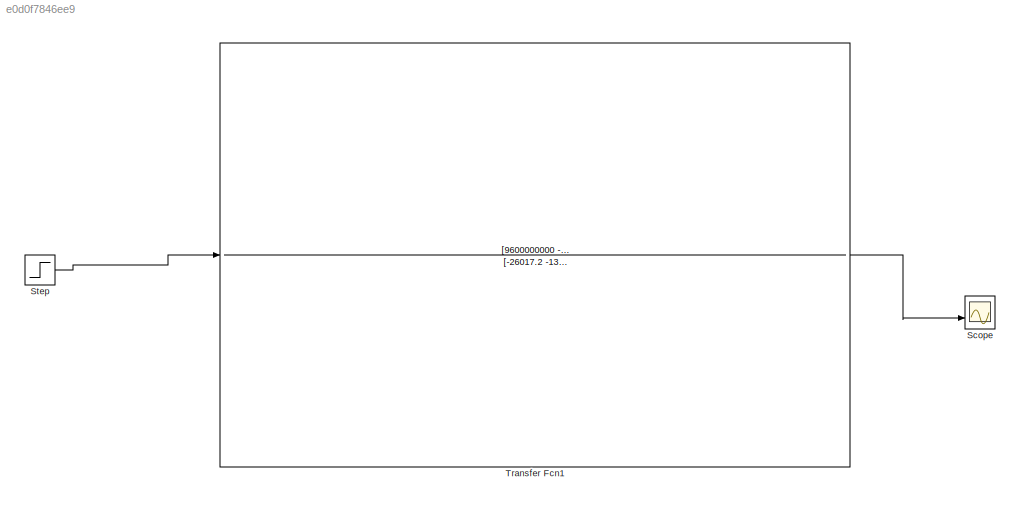
MODEL slx_e0d0f7846ee9
KIND model
CONFIG AbsTol = auto
CONFIG EnableMultiTasking = off
CONFIG FixedStep = auto
CONFIG MaxStep = auto
CONFIG MinStep = auto
CONFIG RelTol = 1e-3
CONFIG SampleTimeConstraint = Unconstrained
CONFIG Solver = VariableStepAuto
CONFIG SolverName = VariableStepAuto
CONFIG StartTime = 0.0
CONFIG StopTime = 10
BLOCK [Scope] Scope
  NumInputPorts = 2
  Ports = [2]
  ScopeSpecificationString = Simulink.scopes.TimeScopeBlockCfg('CurrentConfiguration', extmgr.ConfigurationSet(extmgr.Configuration('Core','General UI',true),extmgr.Configuration('Core','Source UI',true),extmgr.Configuration('Sources','WiredSimulink',true),extmgr.Configuration('Visuals','Time Domain',true,'SerializedDisplays',{struct('MinYLimReal','-124.04134','MaxYLimReal','1112.36004','YLabelReal','','MinYLimMag',' 0.00000'...<+1464ch>
BLOCK [Step] Step
  After = 12
  SampleTime = 0
  Time = 0
BLOCK [TransferFcn] Transfer Fcn1
  Denominator = [-26017.2 -130085572505.65 -160590000000000000 -2917900000000000000 -7360000000000000000]
  Numerator = [9600000000 -13333304250000000 -240404000000000000 -606060000000000000000]
LINE Step:1 -> Transfer Fcn1:1
LINE Transfer Fcn1:1 -> Scope:2
